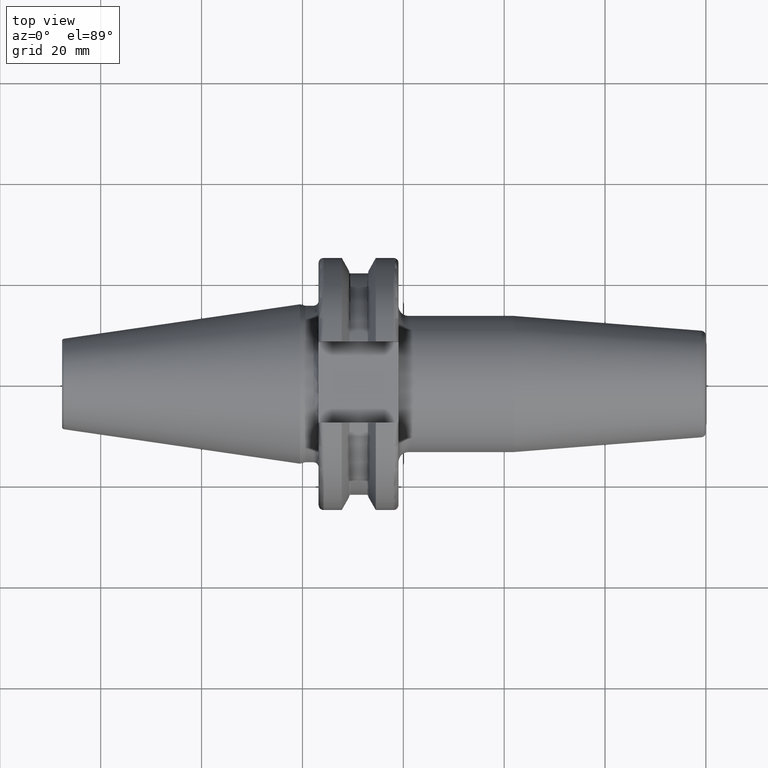
[diagram: clean part render]
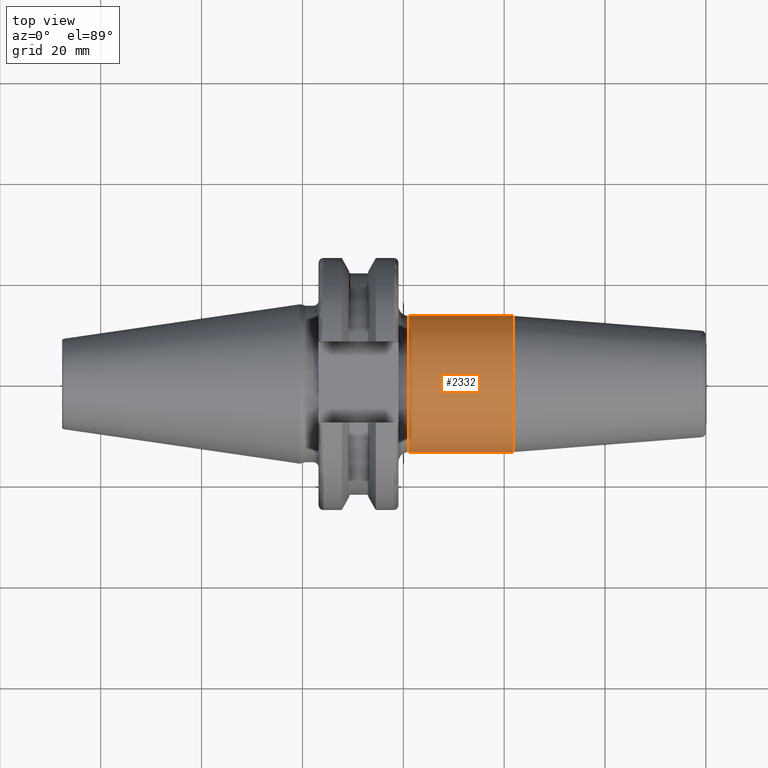
[diagram: same view with one face highlighted and labeled with its STEP entity id]
A machine part, top view. The second image highlights one B-rep face of the part: STEP entity #2332.
In plain terms, the highlighted cylindrical surface (partial cylindrical patch) has radius 13.5 mm, axis along (1, 0, 0).
Its self-contained STEP definition (entity closure, byte-faithful):
#852=CARTESIAN_POINT('',(2.105E1,0.E0,0.E0));
#853=DIRECTION('',(1.E0,0.E0,0.E0));
#854=DIRECTION('',(0.E0,1.E0,0.E0));
#855=AXIS2_PLACEMENT_3D('',#852,#853,#854);
#857=CARTESIAN_POINT('',(4.188138579148E1,0.E0,0.E0));
#858=DIRECTION('',(1.E0,0.E0,0.E0));
#859=DIRECTION('',(0.E0,1.E0,0.E0));
#860=AXIS2_PLACEMENT_3D('',#857,#858,#859);
#867=DIRECTION('',(-1.E0,0.E0,-2.420991356082E-13));
#868=VECTOR('',#867,2.083138579148E1);
#869=CARTESIAN_POINT('',(4.188138579148E1,-1.35E1,0.E0));
#870=LINE('',#869,#868);
#876=DIRECTION('',(-1.E0,0.E0,2.420093438856E-13));
#877=VECTOR('',#876,2.083138579148E1);
#878=CARTESIAN_POINT('',(4.188138579148E1,1.35E1,0.E0));
#879=LINE('',#878,#877);
#1390=CARTESIAN_POINT('',(4.188138579148E1,1.35E1,0.E0));
#1391=CARTESIAN_POINT('',(4.188138579148E1,-1.35E1,0.E0));
#1392=VERTEX_POINT('',#1390);
#1393=VERTEX_POINT('',#1391);
#1398=CARTESIAN_POINT('',(2.105E1,-1.35E1,0.E0));
#1399=CARTESIAN_POINT('',(2.105E1,1.35E1,0.E0));
#1400=VERTEX_POINT('',#1398);
#1401=VERTEX_POINT('',#1399);
#2318=CARTESIAN_POINT('',(1.60025E1,0.E0,0.E0));
#2319=DIRECTION('',(1.E0,0.E0,0.E0));
#2320=DIRECTION('',(0.E0,-1.E0,0.E0));
#2321=AXIS2_PLACEMENT_3D('',#2318,#2319,#2320);
#2322=CYLINDRICAL_SURFACE('',#2321,1.35E1);
#2323=ORIENTED_EDGE('',*,*,#2312,.F.);
#2325=ORIENTED_EDGE('',*,*,#2324,.F.);
#2327=ORIENTED_EDGE('',*,*,#2326,.T.);
#2329=ORIENTED_EDGE('',*,*,#2328,.T.);
#2330=EDGE_LOOP('',(#2323,#2325,#2327,#2329));
#2331=FACE_OUTER_BOUND('',#2330,.F.);
#2332=ADVANCED_FACE('',(#2331),#2322,.T.);
#856=CIRCLE('',#855,1.35E1);
#861=CIRCLE('',#860,1.35E1);
#2312=EDGE_CURVE('',#1401,#1400,#856,.T.);
#2324=EDGE_CURVE('',#1392,#1401,#879,.T.);
#2326=EDGE_CURVE('',#1392,#1393,#861,.T.);
#2328=EDGE_CURVE('',#1393,#1400,#870,.T.);